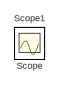
[diagram: root canvas - part 1/3, top left region]
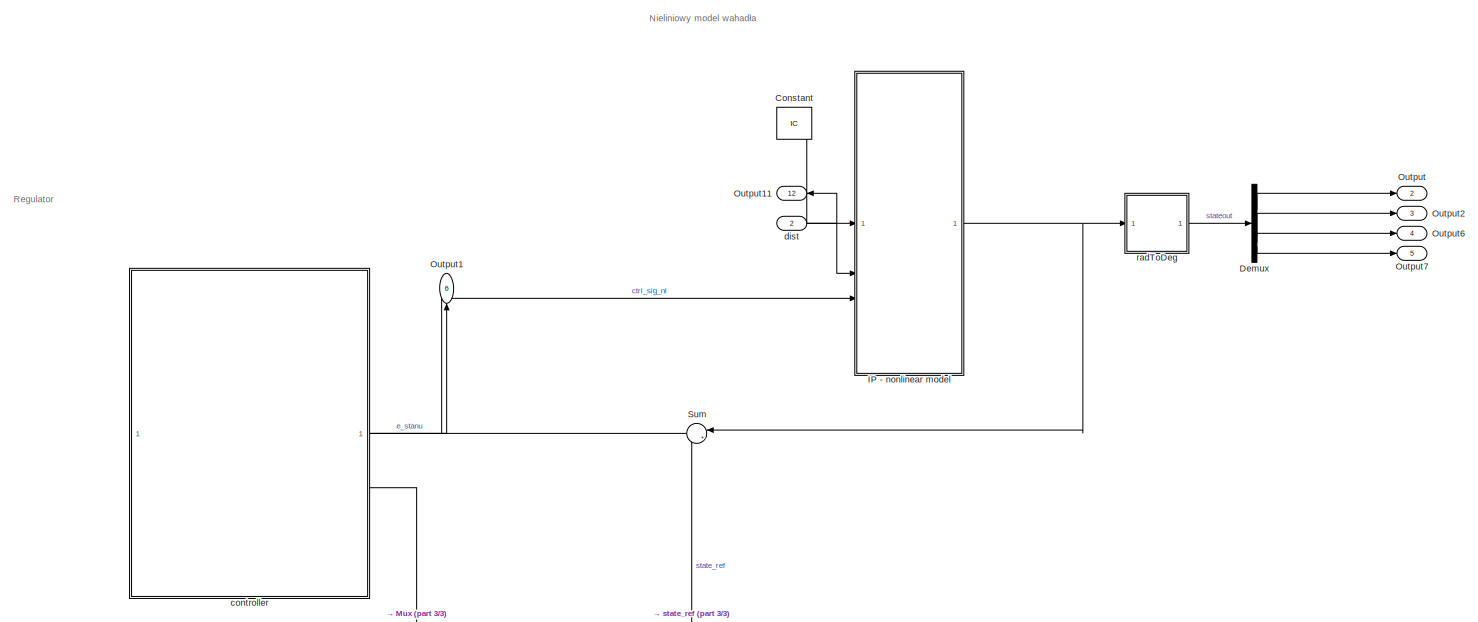
[diagram: root canvas - part 2/3, middle right region]
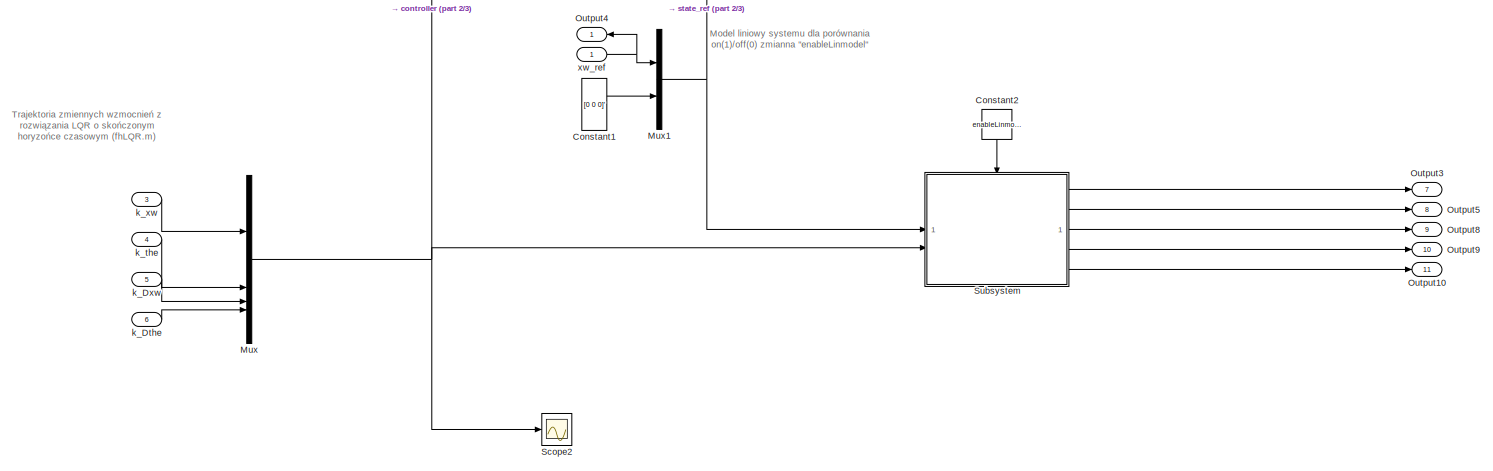
[diagram: root canvas - part 3/3, bottom right region]
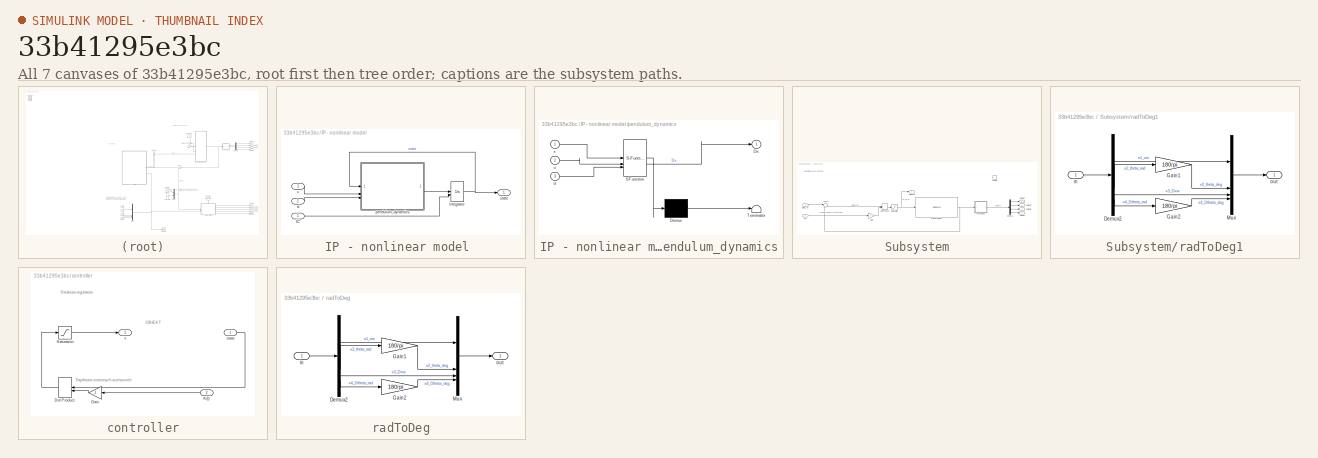
[diagram: thumbnail index - all 7 canvases of the model, root first then tree order]
MODEL slx_33b41295e3bc
KIND model
CONFIG AbsTol = auto
CONFIG EnableMultiTasking = off
CONFIG FixedStep = dt
CONFIG MaxStep = 0.001
CONFIG MinStep = auto
CONFIG RelTol = 1e-3
CONFIG SampleTimeConstraint = Unconstrained
CONFIG SolverName = ode4
CONFIG StartTime = 0.0
CONFIG StopTime = end_time
BLOCK [Constant] Constant
  Value = IC
  VectorParams1D = off
BLOCK [Constant] Constant1
  Value = [0 0 0]'
  VectorParams1D = off
BLOCK [Constant] Constant2
  Commented = on
  NameLocation = left
  Value = enableLinmodel
BLOCK [Demux] Demux
BLOCK [SubSystem] IP - nonlinear model 
  Description = Nonlinear model of inverted pendulum
BLOCK [Inport] IP - nonlinear model /IC
BLOCK [Integrator] IP - nonlinear model /Integrator
  InitialConditionSource = external
BLOCK [Inport] IP - nonlinear model /d
  Port = 2
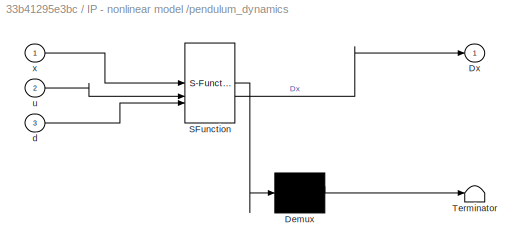
BLOCK [SubSystem] IP - nonlinear model /pendulum_dynamics
  ErrorFcn = Stateflow.Translate.translate
  PermitHierarchicalResolution = ExplicitOnly
  SFBlockType = MATLAB Function
  TreatAsAtomicUnit = on
BLOCK [Demux] IP - nonlinear model /pendulum_dynamics/ Demux 
  Outputs = 1
BLOCK [S-Function] IP - nonlinear model /pendulum_dynamics/ SFunction 
  EnableBusSupport = on
  FunctionName = sf_sfun
  Parameters = params_lepkie
  PortCounts = [3 2]
  SFcnIsStateOwnerBlock = off
  SFunctionDeploymentMode = off
  Tag = Stateflow S-Function 3
BLOCK [Terminator] IP - nonlinear model /pendulum_dynamics/ Terminator 
BLOCK [Outport] IP - nonlinear model /pendulum_dynamics/Dx
BLOCK [Inport] IP - nonlinear model /pendulum_dynamics/d
  Port = 3
BLOCK [Inport] IP - nonlinear model /pendulum_dynamics/u
  Port = 2
BLOCK [Inport] IP - nonlinear model /pendulum_dynamics/x
BLOCK [Outport] IP - nonlinear model /state
BLOCK [Inport] IP - nonlinear model /v
  Port = 3
BLOCK [Mux] Mux
  DisplayOption = bar
BLOCK [Mux] Mux1
  DisplayOption = bar
  Inputs = 2
BLOCK [Outport] Output
  Port = 2
  SignalName = xw_nl
BLOCK [Outport] Output1
  NameLocation = right
  Port = 6
  SignalName = ctrl_sig
BLOCK [Outport] Output10
  Port = 11
  SignalName = ctrl_sig_l
BLOCK [Outport] Output11
  NameLocation = top
  Port = 12
  SignalName = dist
BLOCK [Outport] Output2
  Port = 3
  SignalName = the_nl
BLOCK [Outport] Output3
  Port = 7
  SignalName = xw_l
BLOCK [Outport] Output4
  NameLocation = top
  SignalName = xw_ref
BLOCK [Outport] Output5
  Port = 8
  SignalName = the_l
BLOCK [Outport] Output6
  Port = 4
  SignalName = Dxw_nl
BLOCK [Outport] Output7
  Port = 5
  SignalName = Dthe_nl
BLOCK [Outport] Output8
  Port = 9
  SignalName = Dxw_l
BLOCK [Outport] Output9
  Port = 10
  SignalName = Dthe_l
BLOCK [Scope] Scope
  Floating = off
  IOType = viewer
  NumInputPorts = 1
  ScopeSpecificationString = Simulink.scopes.TimeScopeBlockCfg('CurrentConfiguration', extmgr.ConfigurationSet(extmgr.Configuration('Core','General UI',true),extmgr.Configuration('Core','Source UI',true),extmgr.Configuration('Sources','WiredSimulink',true),extmgr.Configuration('Visuals','Time Domain',true,'SerializedDisplays',{struct('MinYLimReal','-1.11209','MaxYLimReal','1.88409','YLabelReal','','MinYLimMag','0.00000','MaxY...<+1348ch>
BLOCK [Scope] Scope1
  Floating = off
  IOType = viewer
  NumInputPorts = 1
  ScopeSpecificationString = Simulink.scopes.TimeScopeBlockCfg('CurrentConfiguration', extmgr.ConfigurationSet(extmgr.Configuration('Core','General UI',true),extmgr.Configuration('Core','Source UI',true),extmgr.Configuration('Sources','WiredSimulink',true,'DataLoggingVariableName','ScopeData1'),extmgr.Configuration('Visuals','Time Domain',true,'SerializedDisplays',{struct('MinYLimReal','-0.01388','MaxYLimReal','0.12494','YLab...<+1394ch>
BLOCK [Scope] Scope2
  Floating = off
  NumInputPorts = 1
  ScopeSpecificationString = Simulink.scopes.TimeScopeBlockCfg('CurrentConfiguration', extmgr.ConfigurationSet(extmgr.Configuration('Core','General UI',true),extmgr.Configuration('Core','Source UI',true),extmgr.Configuration('Sources','WiredSimulink',true,'DataLoggingVariableName','ScopeData1'),extmgr.Configuration('Visuals','Time Domain',true,'SerializedDisplays',{struct('MinYLimReal','-139.0559','MaxYLimReal','119.14657','Y...<+1454ch>
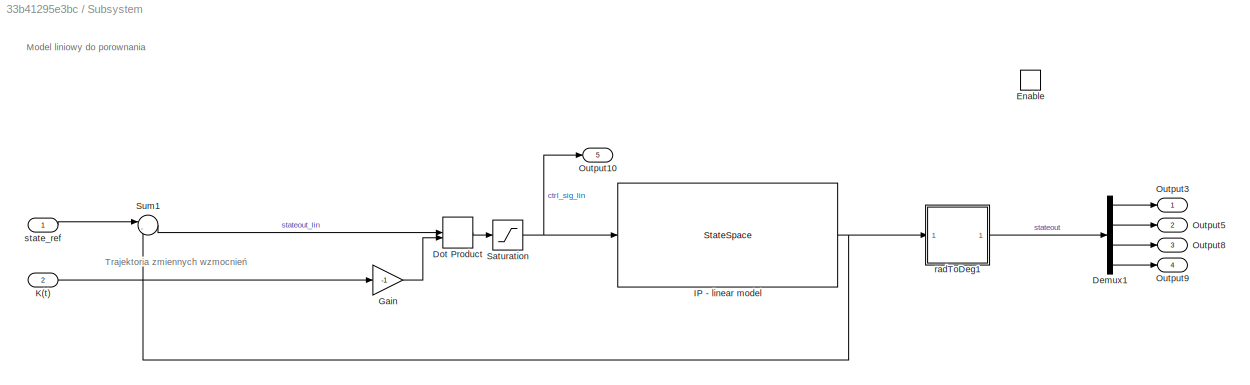
BLOCK [SubSystem] Subsystem
  Commented = on
BLOCK [Demux] Subsystem/Demux1
BLOCK [DotProduct] Subsystem/Dot Product
  OutDataTypeStr = Inherit: Inherit via internal rule
BLOCK [EnablePort] Subsystem/Enable
BLOCK [Gain] Subsystem/Gain
  Gain = -1
BLOCK [StateSpace] Subsystem/IP - linear model
  A = A
  B = B
  C = C
  D = D
  InitialCondition = IC
BLOCK [Inport] Subsystem/K(t)
  Port = 2
BLOCK [Outport] Subsystem/Output10
  Port = 5
BLOCK [Outport] Subsystem/Output3
BLOCK [Outport] Subsystem/Output5
  Port = 2
BLOCK [Outport] Subsystem/Output8
  Port = 3
BLOCK [Outport] Subsystem/Output9
  Port = 4
BLOCK [Saturate] Subsystem/Saturation
  LowerLimit = sat(2)
  UpperLimit = sat(1)
BLOCK [Sum] Subsystem/Sum1
  Inputs = |-+
BLOCK [SubSystem] Subsystem/radToDeg1
BLOCK [Demux] Subsystem/radToDeg1/Demux2
BLOCK [Gain] Subsystem/radToDeg1/Gain1
  Gain = 180/pi
BLOCK [Gain] Subsystem/radToDeg1/Gain2
  Gain = 180/pi
BLOCK [Mux] Subsystem/radToDeg1/Mux
  DisplayOption = bar
BLOCK [Inport] Subsystem/radToDeg1/in
BLOCK [Outport] Subsystem/radToDeg1/out
BLOCK [Inport] Subsystem/state_ref
BLOCK [Sum] Sum
  Inputs = |+-
  NameLocation = top
BLOCK [SubSystem] controller
  PortSchema = {"entries":[{"content":{"sides":[{"content":{},"type":"ConnectorPlacement.EquallySpacedRectSide","uuid":"6de1dc69-5efb-4201-9eee-dce886879f47"},{"content":{"connectorIds":["Out1","In1","In2"],"side":"RIGHT"},"type":"ConnectorPlacement.EquallySpacedRectSide","uuid":"f5fecc05-d223-4a83-8c79-e750f1bc671b"},{"content":{"side":"TOP"},"type":"ConnectorPlacement.EquallySpacedRectSide","uuid":"1fb1d94d-65...<+338ch>
BLOCK [DotProduct] controller/Dot Product
  NameLocation = top
  OutDataTypeStr = Inherit: Inherit via internal rule
BLOCK [Gain] controller/Gain
  Gain = -1
  NameLocation = top
BLOCK [Inport] controller/K(t)
  Port = 2
BLOCK [Saturate] controller/Saturation
  LowerLimit = sat(2)
  UpperLimit = sat(1)
BLOCK [Inport] controller/state
BLOCK [Outport] controller/v
BLOCK [Inport] dist
  NameLocation = left
  Port = 2
BLOCK [Inport] k_Dthe
  Port = 6
BLOCK [Inport] k_Dxw
  Port = 5
BLOCK [Inport] k_the
  Port = 4
BLOCK [Inport] k_xw
  Port = 3
BLOCK [SubSystem] radToDeg
BLOCK [Demux] radToDeg/Demux2
BLOCK [Gain] radToDeg/Gain1
  Gain = 180/pi
BLOCK [Gain] radToDeg/Gain2
  Gain = 180/pi
BLOCK [Mux] radToDeg/Mux
  DisplayOption = bar
BLOCK [Inport] radToDeg/in
BLOCK [Outport] radToDeg/out
BLOCK [Inport] xw_ref
  NameLocation = left
ANNOTATION (root): Model liniowy systemu dla porównania on(1)/off(0) zmianna "enableLinmodel"
ANNOTATION (root): Nieliniowy model wahadła
ANNOTATION (root): Regulator
ANNOTATION (root): Trajektoria zmiennych wzmocnień z rozwiązania LQR o skończonym horyzońce czasowym (fhLQR.m)
ANNOTATION Subsystem: Trajektoria zmiennych wzmocnień
ANNOTATION Subsystem: Model liniowy do porownania
ANNOTATION controller: OBIEKT
ANNOTATION controller: Struktura regulatora
ANNOTATION controller: Trajektoria zmiennych wzmocnień
LINE Constant1:1 -> Mux1:2
LINE Constant2:1 -> Subsystem:enable
LINE Constant:1 -> IP - nonlinear model :1
LINE Demux:1 -> Output:1
LINE Demux:2 -> Output2:1
LINE Demux:3 -> Output6:1
LINE Demux:4 -> Output7:1
LINE IP - nonlinear model /IC:1 -> IP - nonlinear model /Integrator:2
NET IP - nonlinear model /Integrator:1 -> IP - nonlinear model /pendulum_dynamics:1, IP - nonlinear model /state:1
LINE IP - nonlinear model /d:1 -> IP - nonlinear model /pendulum_dynamics:3
LINE IP - nonlinear model /pendulum_dynamics:1 -> IP - nonlinear model /Integrator:1
LINE IP - nonlinear model /v:1 -> IP - nonlinear model /pendulum_dynamics:2
NET IP - nonlinear model :1 -> Sum:1, radToDeg:1
NET Mux1:1 -> Subsystem:1, Sum:2
NET Mux:1 -> Scope2:1, Subsystem:2, controller:2
LINE Subsystem/Demux1:1 -> Subsystem/Output3:1
LINE Subsystem/Demux1:2 -> Subsystem/Output5:1
LINE Subsystem/Demux1:3 -> Subsystem/Output8:1
LINE Subsystem/Demux1:4 -> Subsystem/Output9:1
LINE Subsystem/Dot Product:1 -> Subsystem/Saturation:1
LINE Subsystem/Gain:1 -> Subsystem/Dot Product:2
NET Subsystem/IP - linear model:1 -> Subsystem/Sum1:2, Subsystem/radToDeg1:1
LINE Subsystem/K(t):1 -> Subsystem/Gain:1
NET Subsystem/Saturation:1 -> Subsystem/IP - linear model:1, Subsystem/Output10:1
LINE Subsystem/Sum1:1 -> Subsystem/Dot Product:1
LINE Subsystem/radToDeg1/Demux2:1 -> Subsystem/radToDeg1/Mux:1
LINE Subsystem/radToDeg1/Demux2:2 -> Subsystem/radToDeg1/Gain1:1
LINE Subsystem/radToDeg1/Demux2:3 -> Subsystem/radToDeg1/Mux:3
LINE Subsystem/radToDeg1/Demux2:4 -> Subsystem/radToDeg1/Gain2:1
LINE Subsystem/radToDeg1/Gain1:1 -> Subsystem/radToDeg1/Mux:2
LINE Subsystem/radToDeg1/Gain2:1 -> Subsystem/radToDeg1/Mux:4
LINE Subsystem/radToDeg1/Mux:1 -> Subsystem/radToDeg1/out:1
LINE Subsystem/radToDeg1/in:1 -> Subsystem/radToDeg1/Demux2:1
LINE Subsystem/radToDeg1:1 -> Subsystem/Demux1:1
LINE Subsystem/state_ref:1 -> Subsystem/Sum1:1
LINE Subsystem:1 -> Output3:1
LINE Subsystem:2 -> Output5:1
LINE Subsystem:3 -> Output8:1
LINE Subsystem:4 -> Output9:1
LINE Subsystem:5 -> Output10:1
LINE Sum:1 -> controller:1
LINE controller/Dot Product:1 -> controller/Saturation:1
LINE controller/Gain:1 -> controller/Dot Product:2
LINE controller/K(t):1 -> controller/Gain:1
LINE controller/Saturation:1 -> controller/v:1
LINE controller/state:1 -> controller/Dot Product:1
NET controller:1 -> IP - nonlinear model :3, Output1:1
NET dist:1 -> IP - nonlinear model :2, Output11:1
LINE k_Dthe:1 -> Mux:4
LINE k_Dxw:1 -> Mux:3
LINE k_the:1 -> Mux:2
LINE k_xw:1 -> Mux:1
LINE radToDeg/Demux2:1 -> radToDeg/Mux:1
LINE radToDeg/Demux2:2 -> radToDeg/Gain1:1
LINE radToDeg/Demux2:3 -> radToDeg/Mux:3
LINE radToDeg/Demux2:4 -> radToDeg/Gain2:1
LINE radToDeg/Gain1:1 -> radToDeg/Mux:2
LINE radToDeg/Gain2:1 -> radToDeg/Mux:4
LINE radToDeg/Mux:1 -> radToDeg/out:1
LINE radToDeg/in:1 -> radToDeg/Demux2:1
LINE radToDeg:1 -> Demux:1
NET xw_ref:1 -> Mux1:1, Output4:1
note: NET lines group one-source signal fan-out (src -> all destinations, sorted); 1:1 wires keep LINE
CHART IP - nonlinear model /pendulum_dynamics states=1 transitions=1
  STATE_LABEL 'eML_blk_kernel()'
  STATE_LABEL 'SCRIPT:\nfunction Dx = dynamika_wahadla(x, u, d, params_lepkie)\n% x : stan\n% u : input - napięcie\n%\n% params scope: "parameters"\n%\n\n% State, function input: x = [x Dx theta Dtheta]\'\nx1 = x(1);\nx2 = x(2); \nx3 = x(3);\nx4 = x(4);\n\nparams_lepkie = num2cell(params_lepkie);\n[M, mc, mp, Lp, Lc, g, b, gamma, mr, Mt, L, Jcm, Jt, alpha, beta] = params_lepkie{:};\n\n% Equations for pendulum dynamics\nFf = b*x3;\n...<+333ch>'
CHART  states=0 transitions=0
